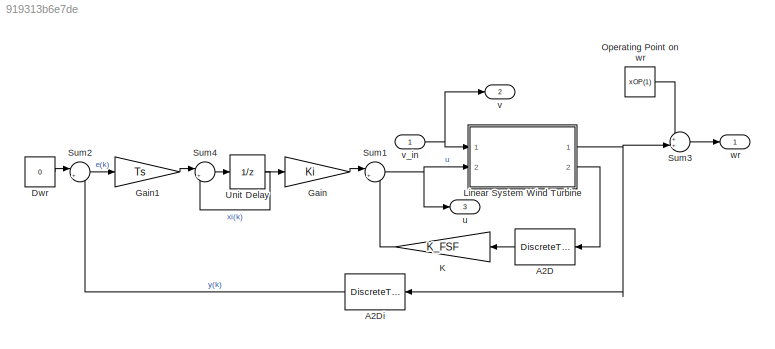
MODEL slx_919313b6e7de
KIND model
CONFIG AbsTol = auto
CONFIG EnableMultiTasking = off
CONFIG FixedStep = STEP_SIZE
CONFIG MaxStep = auto
CONFIG MinStep = auto
CONFIG RelTol = 1e-3
CONFIG SampleTimeConstraint = Unconstrained
CONFIG Solver = ode4
CONFIG SolverName = ode4
CONFIG StartTime = 0.0
CONFIG StopTime = TIME_SIM
BLOCK [DiscreteTransferFcn] A2D
  Denominator = [1]
  InputPortMap = u0
  Ports = [1, 1]
  SampleTime = Ts
BLOCK [DiscreteTransferFcn] A2Di
  Denominator = [1]
  InputPortMap = u0
  Ports = [1, 1]
  SampleTime = Ts
BLOCK [Constant] Dwr
  SampleTime = Ts
  Value = 0
BLOCK [Gain] Gain
  Gain = Ki
  Multiplication = Matrix(K*u) (u vector)
  OutDataTypeStr = Inherit: Inherit via internal rule
  ParamDataTypeStr = Inherit: Inherit via internal rule
  SaturateOnIntegerOverflow = off
BLOCK [Gain] Gain1
  Gain = Ts
  Multiplication = Matrix(K*u) (u vector)
  OutDataTypeStr = Inherit: Inherit via internal rule
  ParamDataTypeStr = Inherit: Inherit via internal rule
  SaturateOnIntegerOverflow = off
BLOCK [Gain] K
  Gain = K_FSF
  Multiplication = Matrix(K*u) (u vector)
  OutDataTypeStr = Inherit: Inherit via internal rule
  ParamDataTypeStr = Inherit: Inherit via internal rule
  SaturateOnIntegerOverflow = off
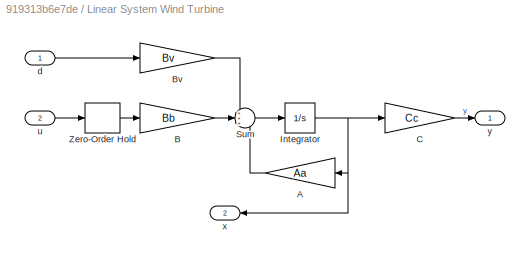
BLOCK [SubSystem] Linear System Wind Turbine
  Ports = [2, 2]
  RequestExecContextInheritance = off
BLOCK [Gain] Linear System Wind Turbine/A
  Gain = Aa
  Multiplication = Matrix(K*u) (u vector)
  OutDataTypeStr = Inherit: Inherit via internal rule
  ParamDataTypeStr = Inherit: Inherit via internal rule
  SaturateOnIntegerOverflow = off
BLOCK [Gain] Linear System Wind Turbine/B
  Gain = Bb
  Multiplication = Matrix(K*u) (u vector)
  OutDataTypeStr = Inherit: Inherit via internal rule
  ParamDataTypeStr = Inherit: Inherit via internal rule
  SaturateOnIntegerOverflow = off
BLOCK [Gain] Linear System Wind Turbine/Bv
  Gain = Bv
  Multiplication = Matrix(K*u) (u vector)
  OutDataTypeStr = Inherit: Inherit via internal rule
  ParamDataTypeStr = Inherit: Inherit via internal rule
  SaturateOnIntegerOverflow = off
BLOCK [Gain] Linear System Wind Turbine/C
  Gain = Cc
  Multiplication = Matrix(K*u) (u vector)
  OutDataTypeStr = Inherit: Inherit via internal rule
  ParamDataTypeStr = Inherit: Inherit via internal rule
  SaturateOnIntegerOverflow = off
BLOCK [Integrator] Linear System Wind Turbine/Integrator
  Ports = [1, 1]
BLOCK [Sum] Linear System Wind Turbine/Sum
  IconShape = round
  InputSameDT = off
  Inputs = +++
  OutDataTypeStr = Inherit: Inherit via internal rule
  Ports = [3, 1]
  SaturateOnIntegerOverflow = off
BLOCK [ZeroOrderHold] Linear System Wind Turbine/Zero-Order Hold
  SampleTime = Ts
BLOCK [Inport] Linear System Wind Turbine/d
  IconDisplay = Port number
BLOCK [Inport] Linear System Wind Turbine/u
  IconDisplay = Port number
  Port = 2
BLOCK [Outport] Linear System Wind Turbine/x
  IconDisplay = Port number
  Port = 2
BLOCK [Outport] Linear System Wind Turbine/y
  IconDisplay = Port number
BLOCK [Constant] Operating Point on wr
  Value = xOP(1)
BLOCK [Sum] Sum1
  IconShape = round
  InputSameDT = off
  Inputs = |+-
  OutDataTypeStr = Inherit: Inherit via internal rule
  Ports = [2, 1]
  SaturateOnIntegerOverflow = off
BLOCK [Sum] Sum2
  IconShape = round
  InputSameDT = off
  Inputs = |+-
  OutDataTypeStr = Inherit: Inherit via internal rule
  Ports = [2, 1]
  SaturateOnIntegerOverflow = off
BLOCK [Sum] Sum3
  IconShape = round
  InputSameDT = off
  Inputs = ++|
  OutDataTypeStr = Inherit: Inherit via internal rule
  Ports = [2, 1]
  SaturateOnIntegerOverflow = off
BLOCK [Sum] Sum4
  IconShape = round
  InputSameDT = off
  Inputs = |++
  OutDataTypeStr = Inherit: Inherit via internal rule
  Ports = [2, 1]
  SaturateOnIntegerOverflow = off
BLOCK [UnitDelay] Unit Delay
  InputProcessing = Elements as channels (sample based)
  SampleTime = Ts
BLOCK [Outport] u
  IconDisplay = Port number
  Port = 3
BLOCK [Outport] v
  IconDisplay = Port number
  Port = 2
BLOCK [Inport] v_in
  IconDisplay = Port number
BLOCK [Outport] wr
  IconDisplay = Port number
LINE A2D:1 -> K:1
LINE A2Di:1 -> Sum2:2
LINE Dwr:1 -> Sum2:1
LINE Gain1:1 -> Sum4:1
LINE Gain:1 -> Sum1:1
LINE K:1 -> Sum1:2
LINE Linear System Wind Turbine/A:1 -> Linear System Wind Turbine/Sum:3
LINE Linear System Wind Turbine/B:1 -> Linear System Wind Turbine/Sum:2
LINE Linear System Wind Turbine/Bv:1 -> Linear System Wind Turbine/Sum:1
LINE Linear System Wind Turbine/C:1 -> Linear System Wind Turbine/y:1
NET Linear System Wind Turbine/Integrator:1 -> Linear System Wind Turbine/A:1, Linear System Wind Turbine/C:1, Linear System Wind Turbine/x:1
LINE Linear System Wind Turbine/Sum:1 -> Linear System Wind Turbine/Integrator:1
LINE Linear System Wind Turbine/Zero-Order Hold:1 -> Linear System Wind Turbine/B:1
LINE Linear System Wind Turbine/d:1 -> Linear System Wind Turbine/Bv:1
LINE Linear System Wind Turbine/u:1 -> Linear System Wind Turbine/Zero-Order Hold:1
NET Linear System Wind Turbine:1 -> A2Di:1, Sum3:2
LINE Linear System Wind Turbine:2 -> A2D:1
LINE Operating Point on wr:1 -> Sum3:1
NET Sum1:1 -> Linear System Wind Turbine:2, u:1
LINE Sum2:1 -> Gain1:1
LINE Sum3:1 -> wr:1
LINE Sum4:1 -> Unit Delay:1
NET Unit Delay:1 -> Gain:1, Sum4:2
NET v_in:1 -> Linear System Wind Turbine:1, v:1
note: NET lines group one-source signal fan-out (src -> all destinations, sorted); 1:1 wires keep LINE
